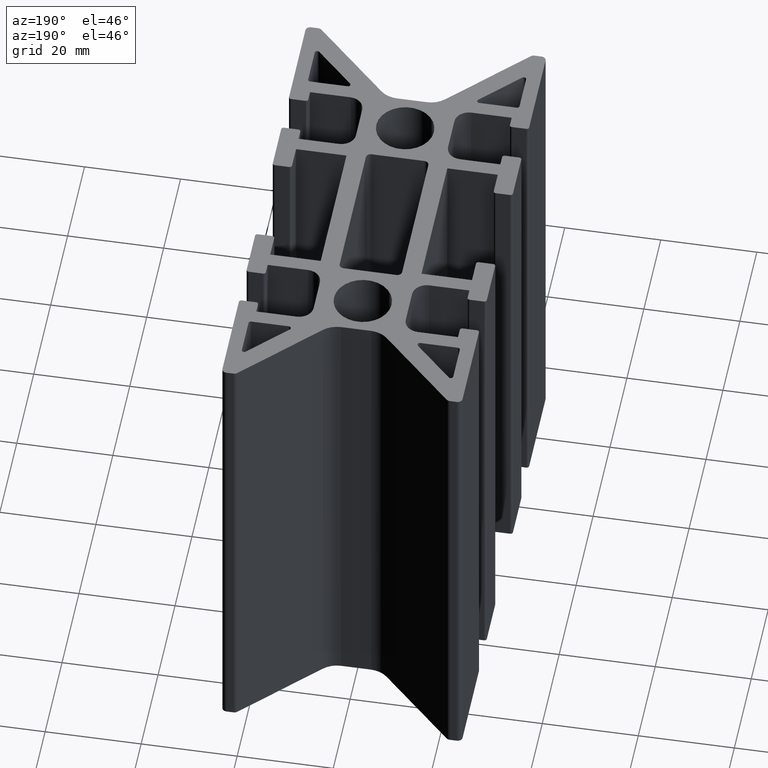
[diagram: clean part render]
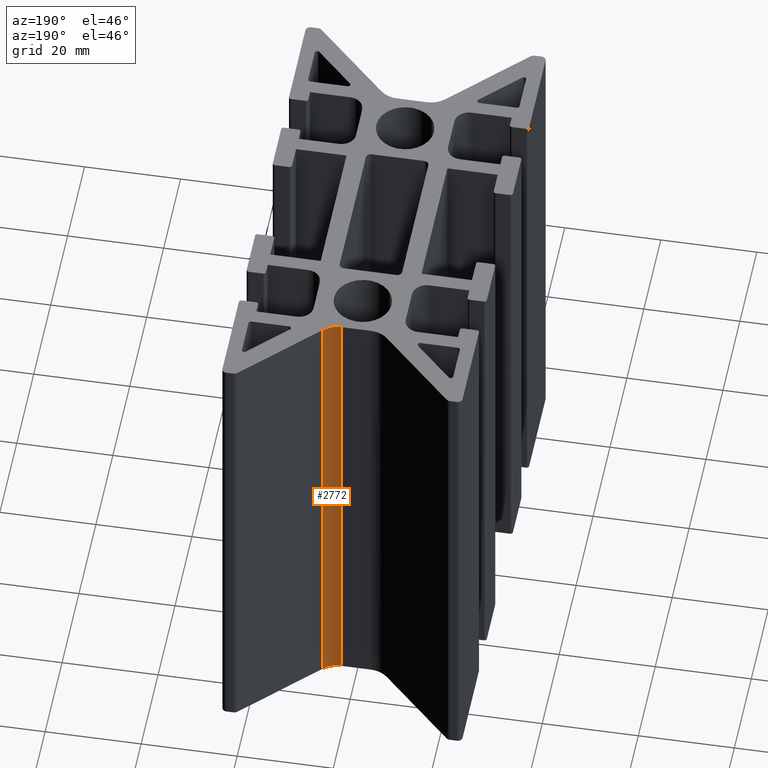
[diagram: same view with one face highlighted and labeled with its STEP entity id]
A machine part, auxiliary view. The second image highlights one B-rep face of the part: STEP entity #2772.
In plain terms, the highlighted cylindrical surface (edge-blend (fillet) strip) has radius 5 mm, axis along (0, 0, 1).
Its self-contained STEP definition (entity closure, byte-faithful):
#202=FACE_OUTER_BOUND('',#351,.T.);
#351=EDGE_LOOP('',(#2295,#2296,#2297,#2298));
#466=CIRCLE('',#2917,5.);
#510=CIRCLE('',#3020,5.);
#744=LINE('',#4548,#1032);
#745=LINE('',#4552,#1033);
#1032=VECTOR('',#3698,100.);
#1033=VECTOR('',#3703,100.);
#1232=VERTEX_POINT('',#4224);
#1233=VERTEX_POINT('',#4226);
#1335=VERTEX_POINT('',#4546);
#1336=VERTEX_POINT('',#4550);
#1540=EDGE_CURVE('',#1232,#1233,#466,.T.);
#1701=EDGE_CURVE('',#1232,#1335,#744,.T.);
#1702=EDGE_CURVE('',#1336,#1335,#510,.T.);
#1703=EDGE_CURVE('',#1233,#1336,#745,.T.);
#2295=ORIENTED_EDGE('',*,*,#1701,.T.);
#2296=ORIENTED_EDGE('',*,*,#1702,.F.);
#2297=ORIENTED_EDGE('',*,*,#1703,.F.);
#2298=ORIENTED_EDGE('',*,*,#1540,.F.);
#2660=CYLINDRICAL_SURFACE('',#3019,5.);
#2772=ADVANCED_FACE('',(#202),#2660,.F.);
#2917=AXIS2_PLACEMENT_3D('',#4227,#3377,#3378);
#3019=AXIS2_PLACEMENT_3D('',#4549,#3699,#3700);
#3020=AXIS2_PLACEMENT_3D('',#4551,#3701,#3702);
#3377=DIRECTION('center_axis',(0.,0.,1.));
#3378=DIRECTION('ref_axis',(-4.44089209850063E-16,1.,0.));
#3698=DIRECTION('',(0.,0.,1.));
#3699=DIRECTION('center_axis',(0.,0.,1.));
#3700=DIRECTION('ref_axis',(-4.44089209850063E-16,1.,0.));
#3701=DIRECTION('center_axis',(0.,0.,-1.));
#3702=DIRECTION('ref_axis',(-4.44089209850063E-16,1.,0.));
#3703=DIRECTION('',(0.,0.,1.));
#4224=CARTESIAN_POINT('',(3.1187414074272,33.1000000000568,-50.));
#4226=CARTESIAN_POINT('',(6.65427531335953,34.5644660941237,-50.));
#4227=CARTESIAN_POINT('Origin',(3.11874140742719,38.1000000000568,-50.));
#4546=CARTESIAN_POINT('',(3.1187414074272,33.1000000000568,50.));
#4548=CARTESIAN_POINT('',(3.11874140742719,33.1000000000568,0.));
#4549=CARTESIAN_POINT('Origin',(3.11874140742719,38.1000000000568,0.));
#4550=CARTESIAN_POINT('',(6.65427531335953,34.5644660941237,50.));
#4551=CARTESIAN_POINT('Origin',(3.11874140742719,38.1000000000568,50.));
#4552=CARTESIAN_POINT('',(6.65427531335953,34.5644660941237,0.));